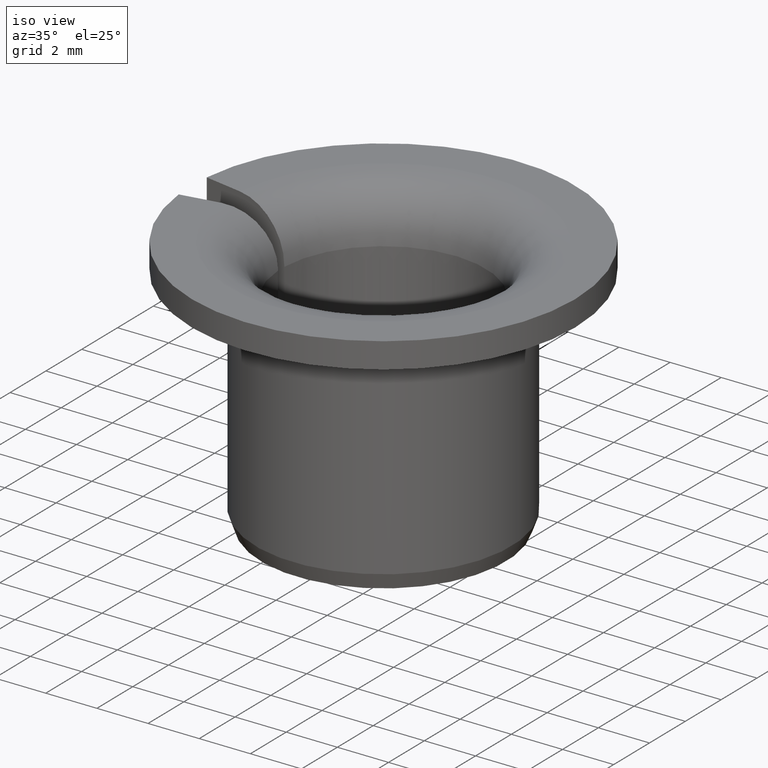
[diagram: clean part render]
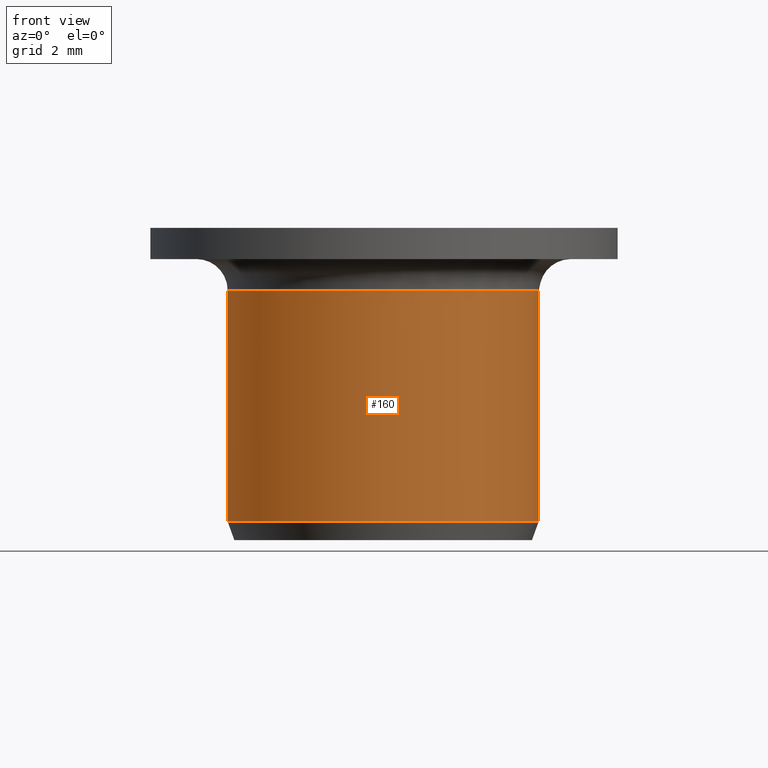
[diagram: tour spotlight — one face highlighted and labeled with its STEP entity id]
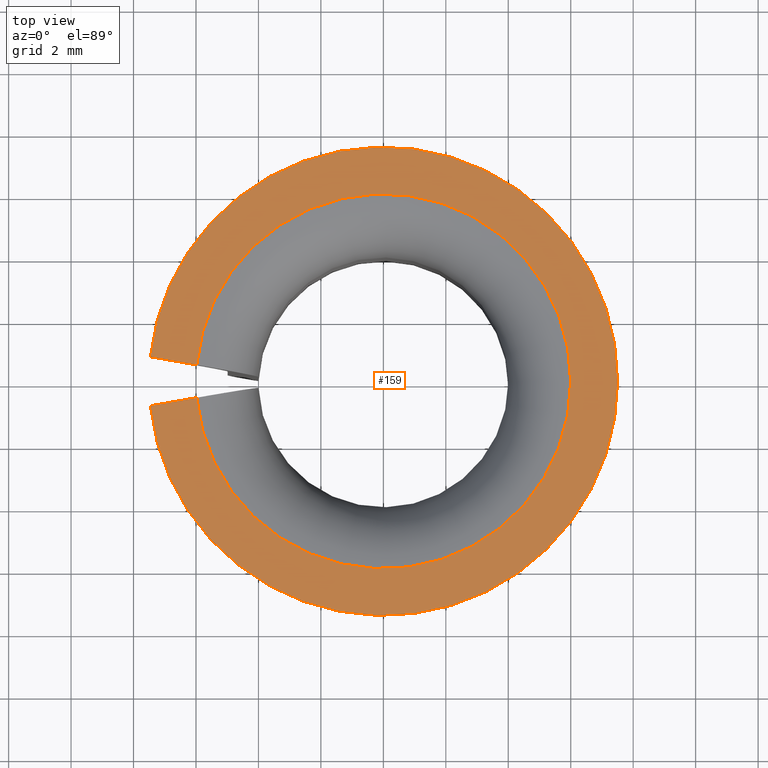
[diagram: tour spotlight — one face highlighted and labeled with its STEP entity id]
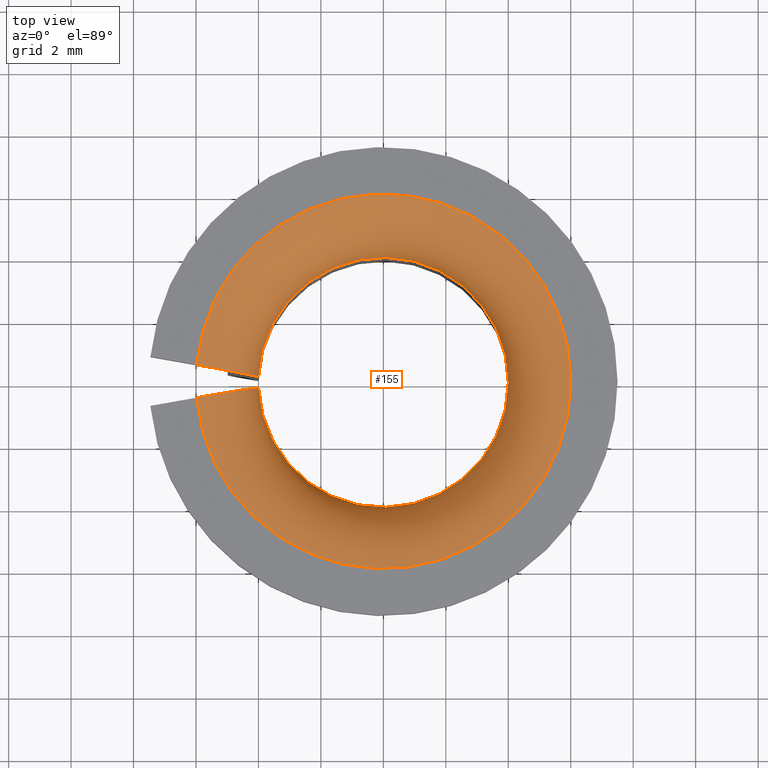
[diagram: tour spotlight — one face highlighted and labeled with its STEP entity id]
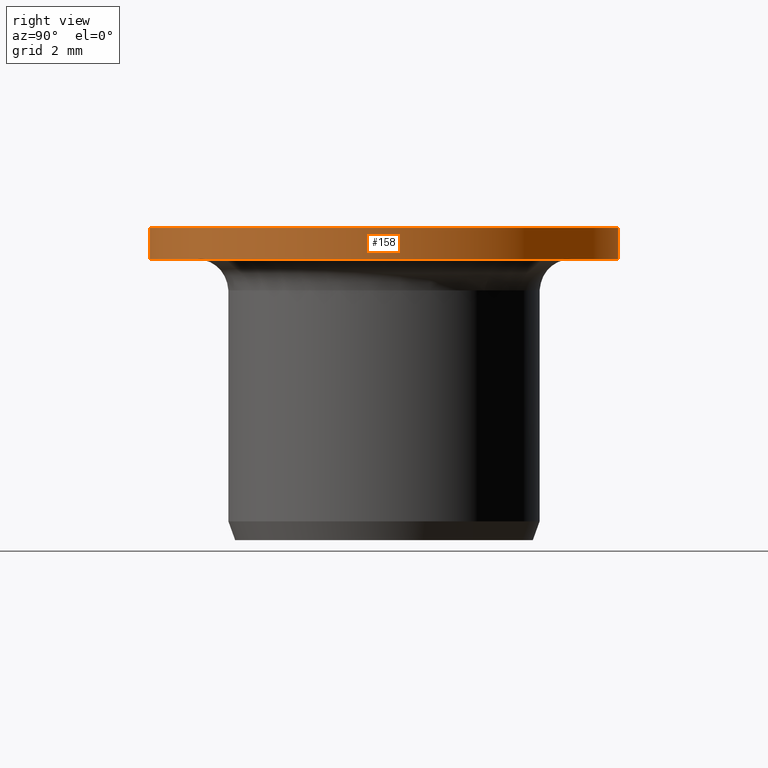
[diagram: tour spotlight — one face highlighted and labeled with its STEP entity id]
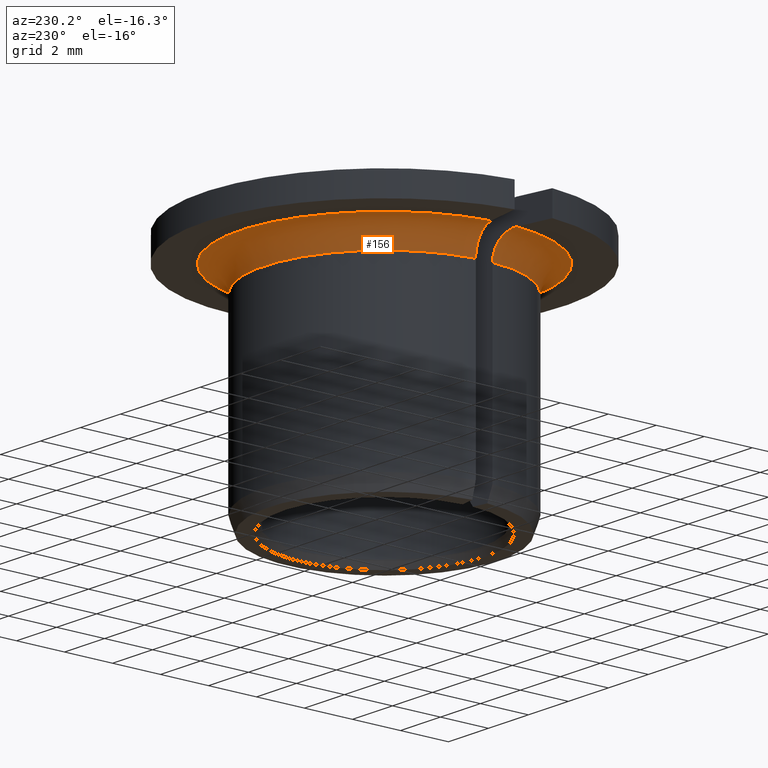
[diagram: tour spotlight — one face highlighted and labeled with its STEP entity id]
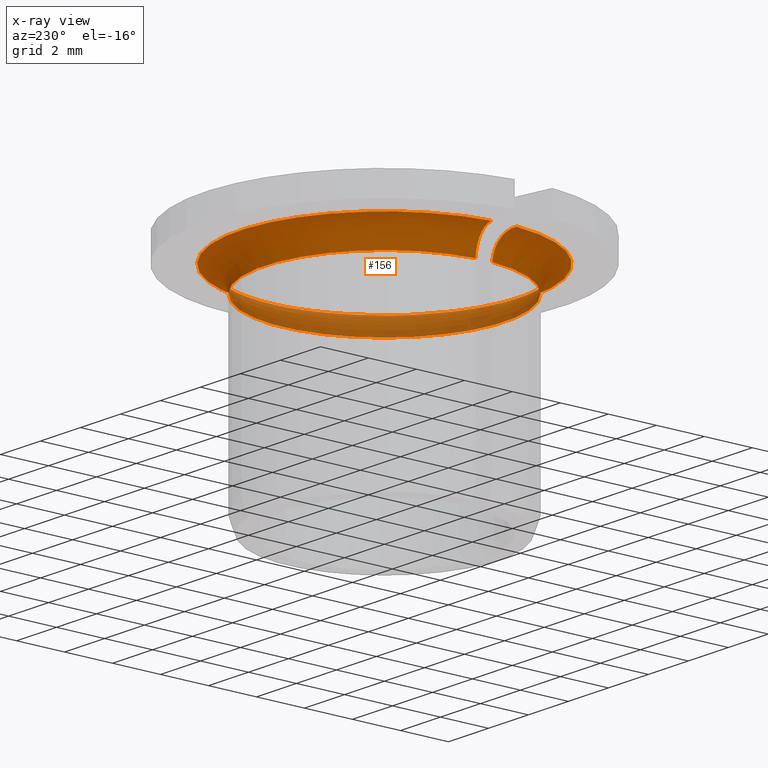
[diagram: x-ray of the same camera — body ghosted, this tour face saturated]
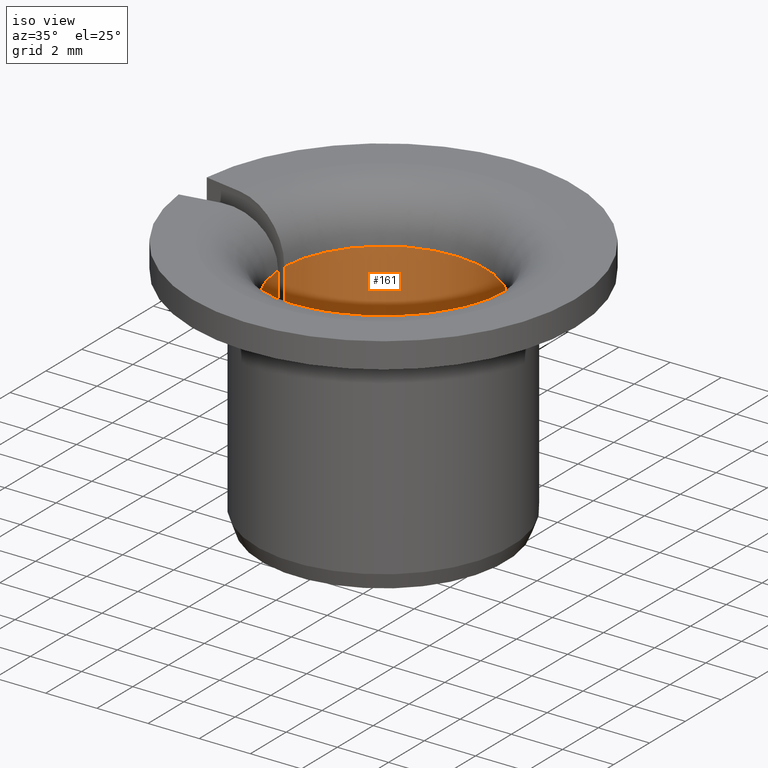
[diagram: tour spotlight — one face highlighted and labeled with its STEP entity id]
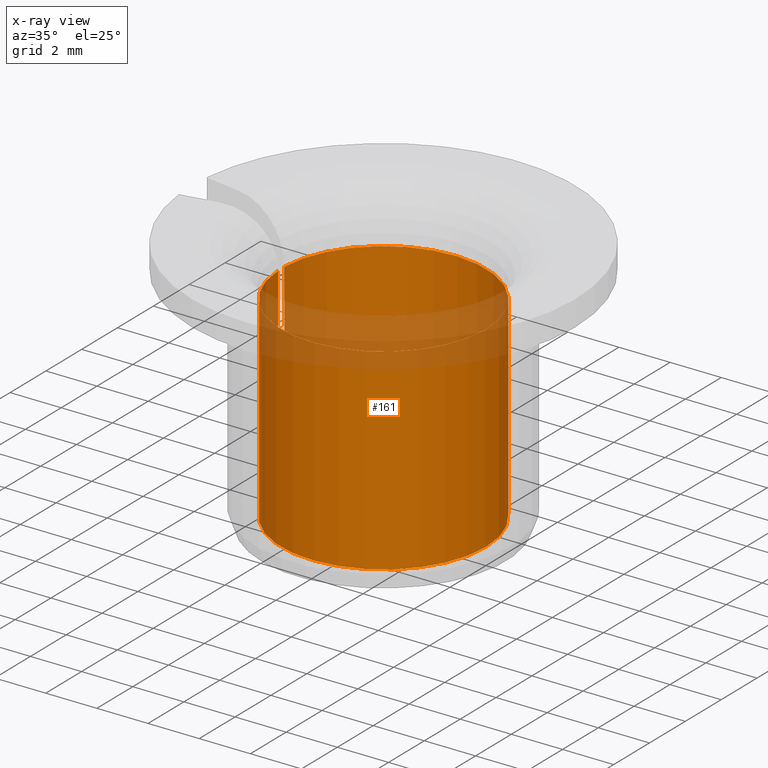
[diagram: x-ray of the same camera — body ghosted, this tour face saturated]
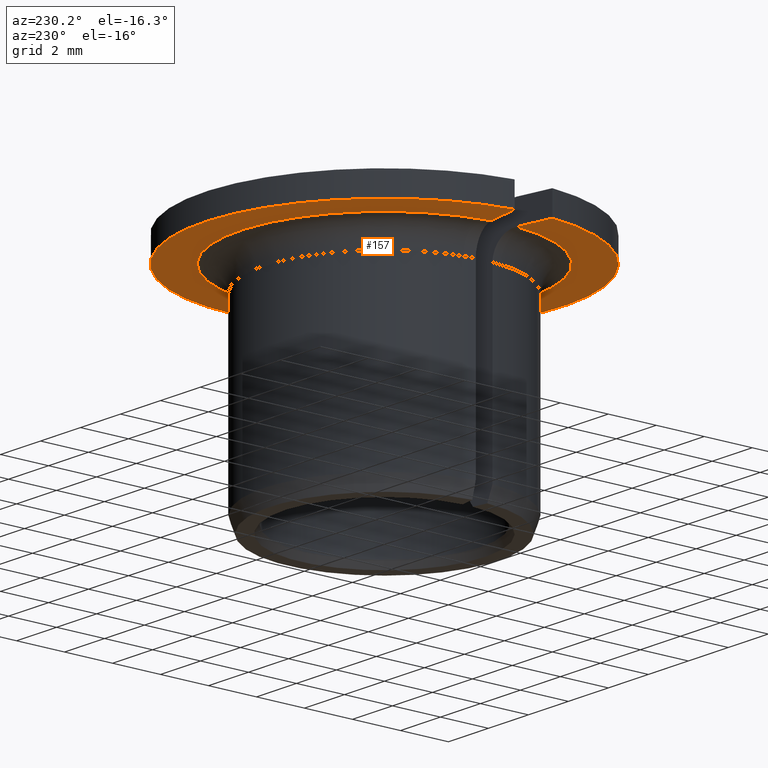
[diagram: tour spotlight — one face highlighted and labeled with its STEP entity id]
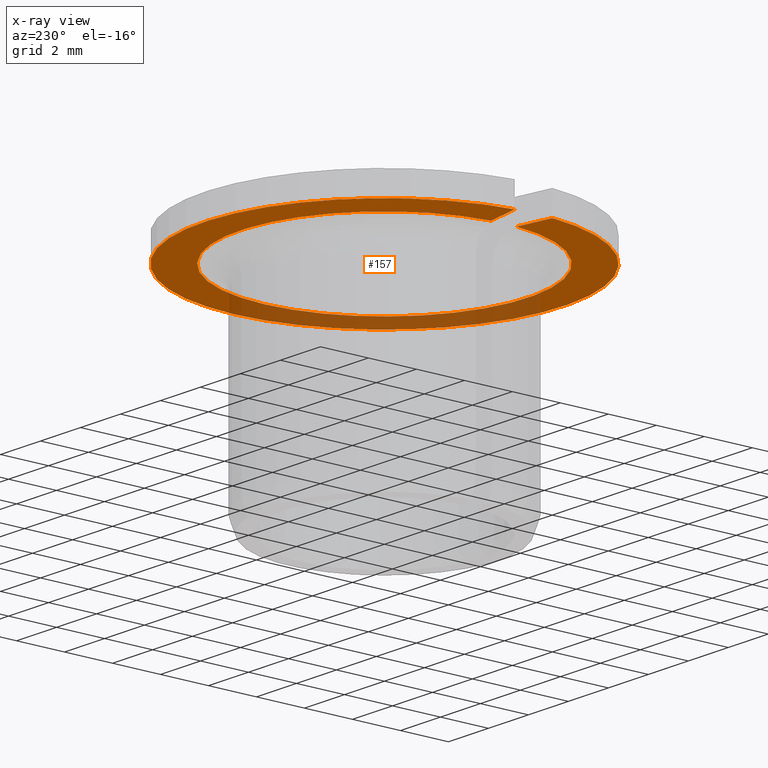
[diagram: x-ray of the same camera — body ghosted, this tour face saturated]
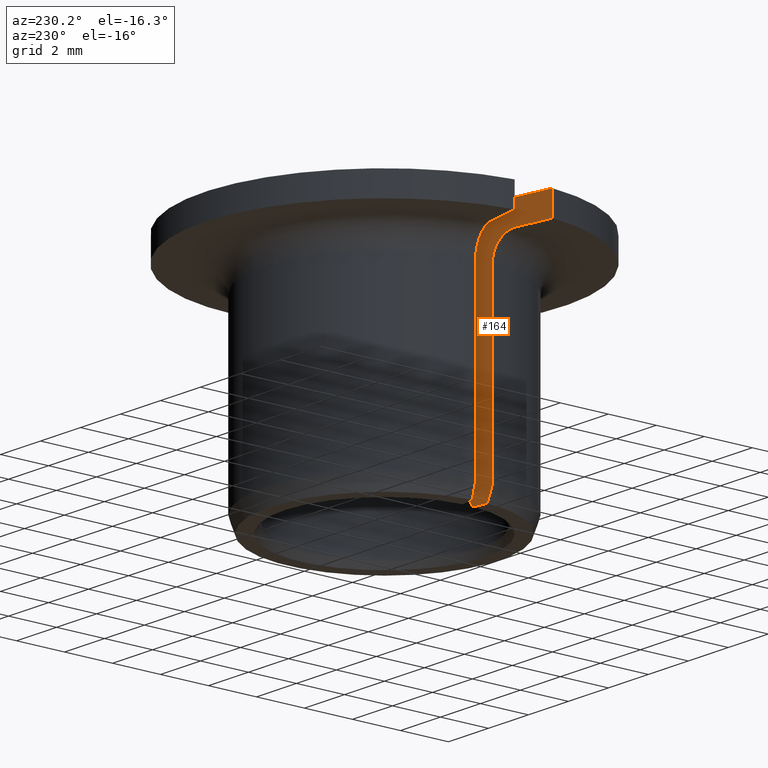
[diagram: tour spotlight — one face highlighted and labeled with its STEP entity id]
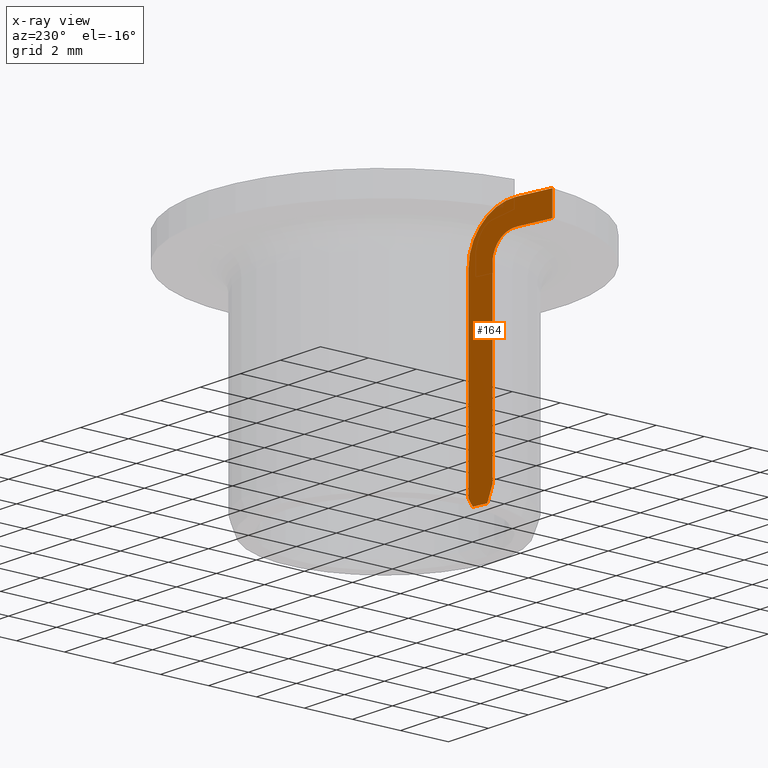
[diagram: x-ray of the same camera — body ghosted, this tour face saturated]
A machine part: a face-by-face anatomy tour. The part has 12 B-rep faces; the first image is the clean iso view, then the 8 largest visible faces are spotlighted one at a time (largest first), each with its STEP entity span.

Face 1 — front view, entity #160. In plain terms, the highlighted cylindrical surface (partial cylindrical patch) has radius 5 mm, axis along (-0, 0, -1).
Definition (entity closure, byte-faithful):
#160=ADVANCED_FACE('',(#181),#182,.T.);
#181=FACE_OUTER_BOUND('',#206,.T.);
#182=CYLINDRICAL_SURFACE('',#207,0.005);
#206=EDGE_LOOP('',(#271,#272,#273,#274));
#207=AXIS2_PLACEMENT_3D('',#275,#276,#277);
#271=ORIENTED_EDGE('',*,*,#330,.T.);
#272=ORIENTED_EDGE('',*,*,#336,.T.);
#273=ORIENTED_EDGE('',*,*,#337,.F.);
#274=ORIENTED_EDGE('',*,*,#317,.F.);
#275=CARTESIAN_POINT('',(0.0,0.0,0.0));
#276=DIRECTION('',(0.0,-6.12323399573677E-017,-1.0));
#277=DIRECTION('',(0.0,1.0,-6.12323399573677E-017));
#317=EDGE_CURVE('',#351,#353,#354,.T.);
#330=EDGE_CURVE('',#351,#374,#376,.T.);
#336=EDGE_CURVE('',#374,#384,#385,.T.);
#337=EDGE_CURVE('',#353,#384,#386,.T.);
#351=VERTEX_POINT('',#417);
#353=VERTEX_POINT('',#428);
#354=LINE('',#429,#430);
#374=VERTEX_POINT('',#474);
#376=CIRCLE('',#485,0.005);
#384=VERTEX_POINT('',#496);
#385=LINE('',#497,#498);
#386=CIRCLE('',#499,0.005);
#417=CARTESIAN_POINT('',(0.00498770087899306,-0.000350485294544406,0.008));
#428=CARTESIAN_POINT('',(0.00498770087899306,-0.000350485294544407,0.0006));
#429=CARTESIAN_POINT('',(0.00498770087899306,-0.000350485294544407,5.28750752381787E-020));
#430=VECTOR('',#513,1.0);
#474=CARTESIAN_POINT('',(0.00498770087899306,0.000350485294544408,0.008));
#485=AXIS2_PLACEMENT_3D('',#531,#532,#533);
#496=CARTESIAN_POINT('',(0.00498770087899306,0.000350485294544408,0.0006));
#497=CARTESIAN_POINT('',(0.00498770087899306,0.000350485294544408,-5.47987993856079E-020));
#498=VECTOR('',#543,1.0);
#499=AXIS2_PLACEMENT_3D('',#544,#545,#546);
#513=DIRECTION('',(0.0,-6.12323399573677E-017,-1.0));
#531=CARTESIAN_POINT('',(0.0,0.0,0.008));
#532=DIRECTION('',(0.0,-6.12323399573677E-017,-1.0));
#533=DIRECTION('',(0.0,1.0,-6.12323399573677E-017));
#543=DIRECTION('',(0.0,-6.12323399573677E-017,-1.0));
#544=CARTESIAN_POINT('',(0.0,0.0,0.0006));
#545=DIRECTION('',(0.0,-6.12323399573677E-017,-1.0));
#546=DIRECTION('',(0.0,1.0,-6.12323399573677E-017));

Face 2 — top view, entity #159. In plain terms, the highlighted planar face has unit normal (0, -0, 1).
Definition (entity closure, byte-faithful):
#159=ADVANCED_FACE('',(#179),#180,.T.);
#179=FACE_OUTER_BOUND('',#204,.T.);
#180=PLANE('',#205);
#204=EDGE_LOOP('',(#264,#265,#266,#267));
#205=AXIS2_PLACEMENT_3D('',#268,#269,#270);
#264=ORIENTED_EDGE('',*,*,#327,.T.);
#265=ORIENTED_EDGE('',*,*,#335,.F.);
#266=ORIENTED_EDGE('',*,*,#333,.F.);
#267=ORIENTED_EDGE('',*,*,#313,.T.);
#268=CARTESIAN_POINT('',(0.0075,0.0,0.01));
#269=DIRECTION('',(0.0,6.12323399573677E-017,1.0));
#270=DIRECTION('',(0.0,-1.0,6.12323399573677E-017));
#313=EDGE_CURVE('',#345,#343,#346,.T.);
#327=EDGE_CURVE('',#343,#369,#371,.T.);
#333=EDGE_CURVE('',#345,#380,#381,.T.);
#335=EDGE_CURVE('',#380,#369,#383,.T.);
#343=VERTEX_POINT('',#393);
#345=VERTEX_POINT('',#408);
#346=LINE('',#409,#410);
#369=VERTEX_POINT('',#456);
#371=CIRCLE('',#471,0.006);
#380=VERTEX_POINT('',#490);
#381=CIRCLE('',#491,0.0075);
#383=LINE('',#494,#495);
#393=CARTESIAN_POINT('',(0.00597699376410577,-0.000524924322012699,0.01));
#408=CARTESIAN_POINT('',(0.00745868032167406,-0.000786185639065035,0.01));
#409=CARTESIAN_POINT('',(0.00989365427108545,-0.00121553724366851,0.01));
#410=VECTOR('',#510,1.0);
#456=CARTESIAN_POINT('',(0.00597699376410577,0.000524924322012701,0.01));
#471=AXIS2_PLACEMENT_3D('',#525,#526,#527);
#490=CARTESIAN_POINT('',(0.00745868032167406,0.000786185639065037,0.01));
#491=AXIS2_PLACEMENT_3D('',#538,#539,#540);
#494=CARTESIAN_POINT('',(0.00989365427108545,0.00121553724366851,0.01));
#495=VECTOR('',#542,1.0);
#510=DIRECTION('',(-0.984807753012208,0.173648177666931,0.0));
#525=CARTESIAN_POINT('',(0.0,0.0,0.01));
#526=DIRECTION('',(0.0,-6.12323399573677E-017,-1.0));
#527=DIRECTION('',(0.0,1.0,-6.12323399573677E-017));
#538=CARTESIAN_POINT('',(0.0,0.0,0.01));
#539=DIRECTION('',(0.0,-6.12323399573677E-017,-1.0));
#540=DIRECTION('',(0.0,1.0,-6.12323399573677E-017));
#542=DIRECTION('',(-0.984807753012208,-0.173648177666931,2.0942693688385E-017));

Face 3 — top view, entity #155. In plain terms, the highlighted toroidal blend (fillet) surface has major radius 6 mm and minor (blend) radius 2 mm.
Definition (entity closure, byte-faithful):
#155=ADVANCED_FACE('',(#171),#172,.T.);
#171=FACE_OUTER_BOUND('',#196,.T.);
#172=TOROIDAL_SURFACE('',#197,0.006,0.002);
#196=EDGE_LOOP('',(#236,#237,#238,#239));
#197=AXIS2_PLACEMENT_3D('',#240,#241,#242);
#236=ORIENTED_EDGE('',*,*,#325,.T.);
#237=ORIENTED_EDGE('',*,*,#326,.T.);
#238=ORIENTED_EDGE('',*,*,#327,.F.);
#239=ORIENTED_EDGE('',*,*,#312,.F.);
#240=CARTESIAN_POINT('',(0.0,0.0,0.008));
#241=DIRECTION('',(0.0,-6.12323399573677E-017,-1.0));
#242=DIRECTION('',(0.0,1.0,-6.12323399573677E-017));
#312=EDGE_CURVE('',#342,#343,#344,.T.);
#325=EDGE_CURVE('',#342,#367,#368,.T.);
#326=EDGE_CURVE('',#367,#369,#370,.T.);
#327=EDGE_CURVE('',#343,#369,#371,.T.);
#342=VERTEX_POINT('',#392);
#343=VERTEX_POINT('',#393);
#344=B_SPLINE_CURVE_WITH_KNOTS('',3,(#394,#395,#396,#397,#398,#399,#400,#401,#402,#403,#404,#405,#406,#407),.UNSPECIFIED.,.F.,.F.,(4,2,2,2,2,2,4),(1.97149807994491E-007,0.000391813408886946,0.000783429667965897,0.00117504592704485,0.0015666621861238,0.0023498947042817,0.0031331272224396),.UNSPECIFIED.);
#367=VERTEX_POINT('',#454);
#368=CIRCLE('',#455,0.004);
#369=VERTEX_POINT('',#456);
#370=B_SPLINE_CURVE_WITH_KNOTS('',3,(#457,#458,#459,#460,#461,#462,#463,#464,#465,#466,#467,#468,#469,#470),.UNSPECIFIED.,.F.,.F.,(4,2,2,2,2,2,4),(1.97149807994491E-007,0.000391813408886945,0.000783429667965895,0.00117504592704485,0.0015666621861238,0.0023498947042817,0.0031331272224396),.UNSPECIFIED.);
#371=CIRCLE('',#471,0.006);
#392=CARTESIAN_POINT('',(0.00399614167081564,-0.000175646653172807,0.008));
#393=CARTESIAN_POINT('',(0.00597699376410577,-0.000524924322012699,0.01));
#394=CARTESIAN_POINT('',(0.00399614167081564,-0.000175646653172807,0.008));
#395=CARTESIAN_POINT('',(0.00399614167081564,-0.000175646653172807,0.00813242481063123));
#396=CARTESIAN_POINT('',(0.00400907724692834,-0.000177927544252484,0.008262608733413));
#397=CARTESIAN_POINT('',(0.00405972542786284,-0.000186858185075042,0.00851868434320013));
#398=CARTESIAN_POINT('',(0.0040980676884675,-0.000193618960120999,0.00864592022676375));
#399=CARTESIAN_POINT('',(0.00419795895644903,-0.000211232485803322,0.00888823095302388));
#400=CARTESIAN_POINT('',(0.004259046812882,-0.000222003923086099,0.00900311852484196));
#401=CARTESIAN_POINT('',(0.00440325719422358,-0.000247432104214877,0.00922049859161173));
#402=CARTESIAN_POINT('',(0.00448703527510573,-0.000262204440266377,0.00932324735045404));
#403=CARTESIAN_POINT('',(0.00476124120870576,-0.000310554344630415,0.00959945096658651));
#404=CARTESIAN_POINT('',(0.00498192933162646,-0.00034946761502324,0.00974807779660636));
#405=CARTESIAN_POINT('',(0.00545731236079945,-0.000433290469237357,0.00994714234040244));
#406=CARTESIAN_POINT('',(0.00571655113836875,-0.000479001260168707,0.01));
#407=CARTESIAN_POINT('',(0.00597699376410577,-0.0005249243220127,0.01));
#454=CARTESIAN_POINT('',(0.00399614167081564,0.000175646653172809,0.008));
#455=AXIS2_PLACEMENT_3D('',#522,#523,#524);
#456=CARTESIAN_POINT('',(0.00597699376410577,0.000524924322012701,0.01));
#457=CARTESIAN_POINT('',(0.00399614167081564,0.000175646653172807,0.008));
#458=CARTESIAN_POINT('',(0.00399614167081564,0.000175646653172807,0.00813242481063123));
#459=CARTESIAN_POINT('',(0.00400907724692834,0.000177927544252485,0.008262608733413));
#460=CARTESIAN_POINT('',(0.00405972542786284,0.000186858185075042,0.00851868434320012));
#461=CARTESIAN_POINT('',(0.0040980676884675,0.000193618960120999,0.00864592022676375));
#462=CARTESIAN_POINT('',(0.00419795895644903,0.000211232485803321,0.00888823095302388));
#463=CARTESIAN_POINT('',(0.004259046812882,0.000222003923086099,0.00900311852484196));
#464=CARTESIAN_POINT('',(0.00440325719422358,0.000247432104214877,0.00922049859161173));
#465=CARTESIAN_POINT('',(0.00448703527510574,0.000262204440266377,0.00932324735045404));
#466=CARTESIAN_POINT('',(0.00476124120870576,0.000310554344630415,0.00959945096658651));
#467=CARTESIAN_POINT('',(0.00498192933162646,0.000349467615023241,0.00974807779660636));
#468=CARTESIAN_POINT('',(0.00545731236079944,0.000433290469237357,0.00994714234040244));
#469=CARTESIAN_POINT('',(0.00571655113836875,0.000479001260168707,0.01));
#470=CARTESIAN_POINT('',(0.00597699376410577,0.0005249243220127,0.01));
#471=AXIS2_PLACEMENT_3D('',#525,#526,#527);
#522=CARTESIAN_POINT('',(0.0,0.0,0.008));
#523=DIRECTION('',(0.0,-6.12323399573677E-017,-1.0));
#524=DIRECTION('',(0.0,1.0,-6.12323399573677E-017));
#525=CARTESIAN_POINT('',(0.0,0.0,0.01));
#526=DIRECTION('',(0.0,-6.12323399573677E-017,-1.0));
#527=DIRECTION('',(0.0,1.0,-6.12323399573677E-017));

Face 4 — right view, entity #158. In plain terms, the highlighted cylindrical surface (partial cylindrical patch) has radius 7.5 mm, axis along (-0, 0, -1).
Definition (entity closure, byte-faithful):
#158=ADVANCED_FACE('',(#177),#178,.T.);
#177=FACE_OUTER_BOUND('',#202,.T.);
#178=CYLINDRICAL_SURFACE('',#203,0.0075);
#202=EDGE_LOOP('',(#257,#258,#259,#260));
#203=AXIS2_PLACEMENT_3D('',#261,#262,#263);
#257=ORIENTED_EDGE('',*,*,#333,.T.);
#258=ORIENTED_EDGE('',*,*,#334,.T.);
#259=ORIENTED_EDGE('',*,*,#331,.F.);
#260=ORIENTED_EDGE('',*,*,#314,.F.);
#261=CARTESIAN_POINT('',(0.0,0.0,0.0));
#262=DIRECTION('',(0.0,-6.12323399573677E-017,-1.0));
#263=DIRECTION('',(0.0,1.0,-6.12323399573677E-017));
#314=EDGE_CURVE('',#345,#347,#348,.T.);
#331=EDGE_CURVE('',#347,#377,#378,.T.);
#333=EDGE_CURVE('',#345,#380,#381,.T.);
#334=EDGE_CURVE('',#380,#377,#382,.T.);
#345=VERTEX_POINT('',#408);
#347=VERTEX_POINT('',#411);
#348=LINE('',#412,#413);
#377=VERTEX_POINT('',#486);
#378=CIRCLE('',#487,0.0075);
#380=VERTEX_POINT('',#490);
#381=CIRCLE('',#491,0.0075);
#382=LINE('',#492,#493);
#408=CARTESIAN_POINT('',(0.00745868032167406,-0.000786185639065035,0.01));
#411=CARTESIAN_POINT('',(0.00745868032167406,-0.000786185639065034,0.009));
#412=CARTESIAN_POINT('',(0.00745868032167406,-0.000786185639065034,7.9554026853408E-020));
#413=VECTOR('',#511,1.0);
#486=CARTESIAN_POINT('',(0.00745868032167406,0.000786185639065035,0.009));
#487=AXIS2_PLACEMENT_3D('',#534,#535,#536);
#490=CARTESIAN_POINT('',(0.00745868032167406,0.000786185639065037,0.01));
#491=AXIS2_PLACEMENT_3D('',#538,#539,#540);
#492=CARTESIAN_POINT('',(0.00745868032167406,0.000786185639065035,-8.14777510008371E-020));
#493=VECTOR('',#541,1.0);
#511=DIRECTION('',(0.0,-6.12323399573677E-017,-1.0));
#534=CARTESIAN_POINT('',(0.0,0.0,0.009));
#535=DIRECTION('',(0.0,-6.12323399573677E-017,-1.0));
#536=DIRECTION('',(0.0,1.0,-6.12323399573677E-017));
#538=CARTESIAN_POINT('',(0.0,0.0,0.01));
#539=DIRECTION('',(0.0,-6.12323399573677E-017,-1.0));
#540=DIRECTION('',(0.0,1.0,-6.12323399573677E-017));
#541=DIRECTION('',(0.0,-6.12323399573677E-017,-1.0));

Face 5 — auxiliary view, entity #156. An x-ray twin of the same camera follows (body ghosted, this face saturated) — the face is partly hidden behind the body. In plain terms, the highlighted toroidal blend (fillet) surface has major radius 6 mm and minor (blend) radius 1 mm.
Definition (entity closure, byte-faithful):
#156=ADVANCED_FACE('',(#173),#174,.F.);
#173=FACE_OUTER_BOUND('',#198,.T.);
#174=TOROIDAL_SURFACE('',#199,0.006,0.001);
#198=EDGE_LOOP('',(#243,#244,#245,#246));
#199=AXIS2_PLACEMENT_3D('',#247,#248,#249);
#243=ORIENTED_EDGE('',*,*,#328,.T.);
#244=ORIENTED_EDGE('',*,*,#329,.T.);
#245=ORIENTED_EDGE('',*,*,#330,.F.);
#246=ORIENTED_EDGE('',*,*,#316,.F.);
#247=CARTESIAN_POINT('',(0.0,0.0,0.008));
#248=DIRECTION('',(0.0,-6.12323399573677E-017,-1.0));
#249=DIRECTION('',(0.0,1.0,-6.12323399573677E-017));
#316=EDGE_CURVE('',#349,#351,#352,.T.);
#328=EDGE_CURVE('',#349,#372,#373,.T.);
#329=EDGE_CURVE('',#372,#374,#375,.T.);
#330=EDGE_CURVE('',#351,#374,#376,.T.);
#349=VERTEX_POINT('',#414);
#351=VERTEX_POINT('',#417);
#352=B_SPLINE_CURVE_WITH_KNOTS('',3,(#418,#419,#420,#421,#422,#423,#424,#425,#426,#427),.UNSPECIFIED.,.F.,.F.,(4,2,2,2,4),(2.32761584607259E-005,0.000414745925110807,0.000806215691760888,0.00119768545841097,0.00158915522506105),.UNSPECIFIED.);
#372=VERTEX_POINT('',#472);
#373=CIRCLE('',#473,0.006);
#374=VERTEX_POINT('',#474);
#375=B_SPLINE_CURVE_WITH_KNOTS('',3,(#475,#476,#477,#478,#479,#480,#481,#482,#483,#484),.UNSPECIFIED.,.F.,.F.,(4,2,2,2,4),(2.32761584607259E-005,0.000414745925110807,0.000806215691760888,0.00119768545841097,0.00158915522506105),.UNSPECIFIED.);
#376=CIRCLE('',#485,0.005);
#414=CARTESIAN_POINT('',(0.00597699376410579,-0.000524924322012701,0.009));
#417=CARTESIAN_POINT('',(0.00498770087899306,-0.000350485294544406,0.008));
#418=CARTESIAN_POINT('',(0.00597699376410579,-0.000524924322012703,0.009));
#419=CARTESIAN_POINT('',(0.00584711842756404,-0.000502023796051801,0.009));
#420=CARTESIAN_POINT('',(0.00571862013906268,-0.000479366080814151,0.00897403826328285));
#421=CARTESIAN_POINT('',(0.00547993772722357,-0.000437279931786347,0.00887429083842926));
#422=CARTESIAN_POINT('',(0.00536996502046796,-0.000417888776443792,0.00880013058665907));
#423=CARTESIAN_POINT('',(0.00518738883395465,-0.000385695668726633,0.00861618594293438));
#424=CARTESIAN_POINT('',(0.00511333951486583,-0.000372638775868185,0.00850467208311291));
#425=CARTESIAN_POINT('',(0.00501411993121606,-0.000355143686256071,0.00826390958854768));
#426=CARTESIAN_POINT('',(0.00498770087898896,-0.000350485294543686,0.00813238072525078));
#427=CARTESIAN_POINT('',(0.00498770087898889,-0.000350485294543674,0.00800000000000051));
#472=CARTESIAN_POINT('',(0.00597699376410579,0.000524924322012702,0.009));
#473=AXIS2_PLACEMENT_3D('',#528,#529,#530);
#474=CARTESIAN_POINT('',(0.00498770087899306,0.000350485294544408,0.008));
#475=CARTESIAN_POINT('',(0.00597699376410579,0.000524924322012703,0.009));
#476=CARTESIAN_POINT('',(0.00584711842756404,0.000502023796051801,0.009));
#477=CARTESIAN_POINT('',(0.00571862013906268,0.000479366080814151,0.00897403826328285));
#478=CARTESIAN_POINT('',(0.00547993772722357,0.000437279931786347,0.00887429083842926));
#479=CARTESIAN_POINT('',(0.00536996502046796,0.000417888776443792,0.00880013058665907));
#480=CARTESIAN_POINT('',(0.00518738883395465,0.000385695668726633,0.00861618594293438));
#481=CARTESIAN_POINT('',(0.00511333951486583,0.000372638775868184,0.00850467208311292));
#482=CARTESIAN_POINT('',(0.00501411993121606,0.00035514368625607,0.00826390958854768));
#483=CARTESIAN_POINT('',(0.00498770087898896,0.000350485294543686,0.00813238072525078));
#484=CARTESIAN_POINT('',(0.00498770087898889,0.000350485294543674,0.00800000000000051));
#485=AXIS2_PLACEMENT_3D('',#531,#532,#533);
#528=CARTESIAN_POINT('',(0.0,0.0,0.009));
#529=DIRECTION('',(0.0,-6.12323399573677E-017,-1.0));
#530=DIRECTION('',(0.0,1.0,-6.12323399573677E-017));
#531=CARTESIAN_POINT('',(0.0,0.0,0.008));
#532=DIRECTION('',(0.0,-6.12323399573677E-017,-1.0));
#533=DIRECTION('',(0.0,1.0,-6.12323399573677E-017));

Face 6 — iso view, entity #161. An x-ray twin of the same camera follows (body ghosted, this face saturated) — the face is partly hidden behind the body. In plain terms, the highlighted cylindrical surface (partial cylindrical patch) has radius 4 mm, axis along (-0, 0, -1).
Definition (entity closure, byte-faithful):
#161=ADVANCED_FACE('',(#183),#184,.F.);
#183=FACE_OUTER_BOUND('',#208,.T.);
#184=CYLINDRICAL_SURFACE('',#209,0.004);
#208=EDGE_LOOP('',(#278,#279,#280,#281));
#209=AXIS2_PLACEMENT_3D('',#282,#283,#284);
#278=ORIENTED_EDGE('',*,*,#324,.T.);
#279=ORIENTED_EDGE('',*,*,#338,.T.);
#280=ORIENTED_EDGE('',*,*,#325,.F.);
#281=ORIENTED_EDGE('',*,*,#321,.F.);
#282=CARTESIAN_POINT('',(0.0,0.0,0.0));
#283=DIRECTION('',(0.0,-6.12323399573677E-017,-1.0));
#284=DIRECTION('',(0.0,1.0,-6.12323399573677E-017));
#321=EDGE_CURVE('',#359,#342,#361,.F.);
#324=EDGE_CURVE('',#359,#364,#366,.T.);
#325=EDGE_CURVE('',#342,#367,#368,.T.);
#338=EDGE_CURVE('',#364,#367,#387,.F.);
#342=VERTEX_POINT('',#392);
#359=VERTEX_POINT('',#439);
#361=LINE('',#444,#445);
#364=VERTEX_POINT('',#448);
#366=CIRCLE('',#453,0.004);
#367=VERTEX_POINT('',#454);
#368=CIRCLE('',#455,0.004);
#387=LINE('',#500,#501);
#392=CARTESIAN_POINT('',(0.00399614167081564,-0.000175646653172807,0.008));
#439=CARTESIAN_POINT('',(0.00399614167081564,-0.000175646653172807,0.0003));
#444=CARTESIAN_POINT('',(0.00399614167081564,-0.000175646653172807,4.21692961120287E-020));
#445=VECTOR('',#515,1.0);
#448=CARTESIAN_POINT('',(0.00399614167081564,0.000175646653172808,0.0003));
#453=AXIS2_PLACEMENT_3D('',#519,#520,#521);
#454=CARTESIAN_POINT('',(0.00399614167081564,0.000175646653172809,0.008));
#455=AXIS2_PLACEMENT_3D('',#522,#523,#524);
#500=CARTESIAN_POINT('',(0.00399614167081564,0.000175646653172808,-4.40930202594578E-020));
#501=VECTOR('',#547,1.0);
#515=DIRECTION('',(0.0,-6.12323399573677E-017,-1.0));
#519=CARTESIAN_POINT('',(0.0,0.0,0.0003));
#520=DIRECTION('',(0.0,-6.12323399573677E-017,-1.0));
#521=DIRECTION('',(0.0,1.0,-6.12323399573677E-017));
#522=CARTESIAN_POINT('',(0.0,0.0,0.008));
#523=DIRECTION('',(0.0,-6.12323399573677E-017,-1.0));
#524=DIRECTION('',(0.0,1.0,-6.12323399573677E-017));
#547=DIRECTION('',(0.0,-6.12323399573677E-017,-1.0));

Face 7 — auxiliary view, entity #157. An x-ray twin of the same camera follows (body ghosted, this face saturated) — the face is partly hidden behind the body. In plain terms, the highlighted planar face has unit normal (-0, 0, -1).
Definition (entity closure, byte-faithful):
#157=ADVANCED_FACE('',(#175),#176,.T.);
#175=FACE_OUTER_BOUND('',#200,.T.);
#176=PLANE('',#201);
#200=EDGE_LOOP('',(#250,#251,#252,#253));
#201=AXIS2_PLACEMENT_3D('',#254,#255,#256);
#250=ORIENTED_EDGE('',*,*,#331,.T.);
#251=ORIENTED_EDGE('',*,*,#332,.T.);
#252=ORIENTED_EDGE('',*,*,#328,.F.);
#253=ORIENTED_EDGE('',*,*,#315,.F.);
#254=CARTESIAN_POINT('',(0.006,0.0,0.009));
#255=DIRECTION('',(0.0,-6.12323399573677E-017,-1.0));
#256=DIRECTION('',(0.0,1.0,-6.12323399573677E-017));
#315=EDGE_CURVE('',#347,#349,#350,.T.);
#328=EDGE_CURVE('',#349,#372,#373,.T.);
#331=EDGE_CURVE('',#347,#377,#378,.T.);
#332=EDGE_CURVE('',#377,#372,#379,.T.);
#347=VERTEX_POINT('',#411);
#349=VERTEX_POINT('',#414);
#350=LINE('',#415,#416);
#372=VERTEX_POINT('',#472);
#373=CIRCLE('',#473,0.006);
#377=VERTEX_POINT('',#486);
#378=CIRCLE('',#487,0.0075);
#379=LINE('',#488,#489);
#411=CARTESIAN_POINT('',(0.00745868032167406,-0.000786185639065034,0.009));
#414=CARTESIAN_POINT('',(0.00597699376410579,-0.000524924322012701,0.009));
#415=CARTESIAN_POINT('',(0.00590953893117886,-0.000513030214988502,0.009));
#416=VECTOR('',#512,1.0);
#472=CARTESIAN_POINT('',(0.00597699376410579,0.000524924322012702,0.009));
#473=AXIS2_PLACEMENT_3D('',#528,#529,#530);
#486=CARTESIAN_POINT('',(0.00745868032167406,0.000786185639065035,0.009));
#487=AXIS2_PLACEMENT_3D('',#534,#535,#536);
#488=CARTESIAN_POINT('',(0.00590953893117886,0.000513030214988503,0.009));
#489=VECTOR('',#537,1.0);
#512=DIRECTION('',(-0.984807753012208,0.173648177666931,-1.06328842478789E-017));
#528=CARTESIAN_POINT('',(0.0,0.0,0.009));
#529=DIRECTION('',(0.0,-6.12323399573677E-017,-1.0));
#530=DIRECTION('',(0.0,1.0,-6.12323399573677E-017));
#534=CARTESIAN_POINT('',(0.0,0.0,0.009));
#535=DIRECTION('',(0.0,-6.12323399573677E-017,-1.0));
#536=DIRECTION('',(0.0,1.0,-6.12323399573677E-017));
#537=DIRECTION('',(-0.984807753012208,-0.173648177666931,1.06328842478789E-017));

Face 8 — auxiliary view, entity #164. An x-ray twin of the same camera follows (body ghosted, this face saturated) — the face is partly hidden behind the body. In plain terms, the highlighted planar face has unit normal (-0.1736, 0.9848, -0).
Definition (entity closure, byte-faithful):
#164=ADVANCED_FACE('',(#189),#190,.T.);
#189=FACE_OUTER_BOUND('',#214,.T.);
#190=PLANE('',#215);
#214=EDGE_LOOP('',(#299,#300,#301,#302,#303,#304,#305,#306,#307,#308));
#215=AXIS2_PLACEMENT_3D('',#309,#310,#311);
#299=ORIENTED_EDGE('',*,*,#338,.F.);
#300=ORIENTED_EDGE('',*,*,#323,.F.);
#301=ORIENTED_EDGE('',*,*,#340,.T.);
#302=ORIENTED_EDGE('',*,*,#341,.F.);
#303=ORIENTED_EDGE('',*,*,#336,.F.);
#304=ORIENTED_EDGE('',*,*,#329,.F.);
#305=ORIENTED_EDGE('',*,*,#332,.F.);
#306=ORIENTED_EDGE('',*,*,#334,.F.);
#307=ORIENTED_EDGE('',*,*,#335,.T.);
#308=ORIENTED_EDGE('',*,*,#326,.F.);
#309=CARTESIAN_POINT('',(-0.00770955855681633,-0.00188838412504393,2.27746992961017E-019));
#310=DIRECTION('',(0.173648177666931,-0.984807753012208,-3.69276194597514E-018));
#311=DIRECTION('',(-2.12657684957577E-017,-6.03423532709537E-033,-1.0));
#323=EDGE_CURVE('',#362,#364,#365,.T.);
#326=EDGE_CURVE('',#367,#369,#370,.T.);
#329=EDGE_CURVE('',#372,#374,#375,.T.);
#332=EDGE_CURVE('',#377,#372,#379,.T.);
#334=EDGE_CURVE('',#380,#377,#382,.T.);
#335=EDGE_CURVE('',#380,#369,#383,.T.);
#336=EDGE_CURVE('',#374,#384,#385,.T.);
#338=EDGE_CURVE('',#364,#367,#387,.F.);
#340=EDGE_CURVE('',#362,#388,#390,.T.);
#341=EDGE_CURVE('',#384,#388,#391,.T.);
#362=VERTEX_POINT('',#446);
#364=VERTEX_POINT('',#448);
#365=B_SPLINE_CURVE_WITH_KNOTS('',3,(#449,#450,#451,#452),.UNSPECIFIED.,.F.,.F.,(4,4),(2.31396596338668E-007,0.000347356429367464),.UNSPECIFIED.);
#367=VERTEX_POINT('',#454);
#369=VERTEX_POINT('',#456);
#370=B_SPLINE_CURVE_WITH_KNOTS('',3,(#457,#458,#459,#460,#461,#462,#463,#464,#465,#466,#467,#468,#469,#470),.UNSPECIFIED.,.F.,.F.,(4,2,2,2,2,2,4),(1.97149807994491E-007,0.000391813408886945,0.000783429667965895,0.00117504592704485,0.0015666621861238,0.0023498947042817,0.0031331272224396),.UNSPECIFIED.);
#372=VERTEX_POINT('',#472);
#374=VERTEX_POINT('',#474);
#375=B_SPLINE_CURVE_WITH_KNOTS('',3,(#475,#476,#477,#478,#479,#480,#481,#482,#483,#484),.UNSPECIFIED.,.F.,.F.,(4,2,2,2,4),(2.32761584607259E-005,0.000414745925110807,0.000806215691760888,0.00119768545841097,0.00158915522506105),.UNSPECIFIED.);
#377=VERTEX_POINT('',#486);
#379=LINE('',#488,#489);
#380=VERTEX_POINT('',#490);
#382=LINE('',#492,#493);
#383=LINE('',#494,#495);
#384=VERTEX_POINT('',#496);
#385=LINE('',#497,#498);
#387=LINE('',#500,#501);
#388=VERTEX_POINT('',#502);
#390=LINE('',#504,#505);
#391=B_SPLINE_CURVE_WITH_KNOTS('',3,(#506,#507,#508,#509),.UNSPECIFIED.,.F.,.F.,(4,4),(2.12972123696982E-007,0.000639148274514943),.UNSPECIFIED.);
#446=CARTESIAN_POINT('',(0.00416811907584122,0.000205970909751045,6.18242089406486E-019));
#448=CARTESIAN_POINT('',(0.00399614167081564,0.000175646653172808,0.0003));
#449=CARTESIAN_POINT('',(0.00416811907584122,0.000205970909751045,-1.59016448316443E-018));
#450=CARTESIAN_POINT('',(0.00411080795546129,0.000195865412933433,0.000100008676351467));
#451=CARTESIAN_POINT('',(0.00405348279616506,0.000185757440676097,0.000200009059158184));
#452=CARTESIAN_POINT('',(0.00399614167081564,0.000175646653172808,0.000299999999999999));
#454=CARTESIAN_POINT('',(0.00399614167081564,0.000175646653172809,0.008));
#456=CARTESIAN_POINT('',(0.00597699376410577,0.000524924322012701,0.01));
#457=CARTESIAN_POINT('',(0.00399614167081564,0.000175646653172807,0.008));
#458=CARTESIAN_POINT('',(0.00399614167081564,0.000175646653172807,0.00813242481063123));
#459=CARTESIAN_POINT('',(0.00400907724692834,0.000177927544252485,0.008262608733413));
#460=CARTESIAN_POINT('',(0.00405972542786284,0.000186858185075042,0.00851868434320012));
#461=CARTESIAN_POINT('',(0.0040980676884675,0.000193618960120999,0.00864592022676375));
#462=CARTESIAN_POINT('',(0.00419795895644903,0.000211232485803321,0.00888823095302388));
#463=CARTESIAN_POINT('',(0.004259046812882,0.000222003923086099,0.00900311852484196));
#464=CARTESIAN_POINT('',(0.00440325719422358,0.000247432104214877,0.00922049859161173));
#465=CARTESIAN_POINT('',(0.00448703527510574,0.000262204440266377,0.00932324735045404));
#466=CARTESIAN_POINT('',(0.00476124120870576,0.000310554344630415,0.00959945096658651));
#467=CARTESIAN_POINT('',(0.00498192933162646,0.000349467615023241,0.00974807779660636));
#468=CARTESIAN_POINT('',(0.00545731236079944,0.000433290469237357,0.00994714234040244));
#469=CARTESIAN_POINT('',(0.00571655113836875,0.000479001260168707,0.01));
#470=CARTESIAN_POINT('',(0.00597699376410577,0.0005249243220127,0.01));
#472=CARTESIAN_POINT('',(0.00597699376410579,0.000524924322012702,0.009));
#474=CARTESIAN_POINT('',(0.00498770087899306,0.000350485294544408,0.008));
#475=CARTESIAN_POINT('',(0.00597699376410579,0.000524924322012703,0.009));
#476=CARTESIAN_POINT('',(0.00584711842756404,0.000502023796051801,0.009));
#477=CARTESIAN_POINT('',(0.00571862013906268,0.000479366080814151,0.00897403826328285));
#478=CARTESIAN_POINT('',(0.00547993772722357,0.000437279931786347,0.00887429083842926));
#479=CARTESIAN_POINT('',(0.00536996502046796,0.000417888776443792,0.00880013058665907));
#480=CARTESIAN_POINT('',(0.00518738883395465,0.000385695668726633,0.00861618594293438));
#481=CARTESIAN_POINT('',(0.00511333951486583,0.000372638775868184,0.00850467208311292));
#482=CARTESIAN_POINT('',(0.00501411993121606,0.00035514368625607,0.00826390958854768));
#483=CARTESIAN_POINT('',(0.00498770087898896,0.000350485294543686,0.00813238072525078));
#484=CARTESIAN_POINT('',(0.00498770087898889,0.000350485294543674,0.00800000000000051));
#486=CARTESIAN_POINT('',(0.00745868032167406,0.000786185639065035,0.009));
#488=CARTESIAN_POINT('',(0.00590953893117886,0.000513030214988503,0.009));
#489=VECTOR('',#537,1.0);
#490=CARTESIAN_POINT('',(0.00745868032167406,0.000786185639065037,0.01));
#492=CARTESIAN_POINT('',(0.00745868032167406,0.000786185639065035,-8.14777510008371E-020));
#493=VECTOR('',#541,1.0);
#494=CARTESIAN_POINT('',(0.00989365427108545,0.00121553724366851,0.01));
#495=VECTOR('',#542,1.0);
#496=CARTESIAN_POINT('',(0.00498770087899306,0.000350485294544408,0.0006));
#497=CARTESIAN_POINT('',(0.00498770087899306,0.000350485294544408,-5.47987993856079E-020));
#498=VECTOR('',#543,1.0);
#500=CARTESIAN_POINT('',(0.00399614167081564,0.000175646653172808,-4.40930202594578E-020));
#501=VECTOR('',#547,1.0);
#502=CARTESIAN_POINT('',(0.00477140534669062,0.000312346556392789,-1.91257105255564E-020));
#504=CARTESIAN_POINT('',(0.003,0.0,6.43083039248804E-019));
#505=VECTOR('',#551,1.0);
#506=CARTESIAN_POINT('',(0.00498770087899306,0.000350485294544409,0.000600000000000001));
#507=CARTESIAN_POINT('',(0.00491561830649228,0.000337775192173647,0.000399994076477626));
#508=CARTESIAN_POINT('',(0.00484352053067909,0.000325062409048712,0.000199993801739417));
#509=CARTESIAN_POINT('',(0.00477140534669062,0.000312346556392789,7.72857145306137E-019));
#537=DIRECTION('',(-0.984807753012208,-0.173648177666931,1.06328842478789E-017));
#541=DIRECTION('',(0.0,-6.12323399573677E-017,-1.0));
#542=DIRECTION('',(-0.984807753012208,-0.173648177666931,2.0942693688385E-017));
#543=DIRECTION('',(0.0,-6.12323399573677E-017,-1.0));
#547=DIRECTION('',(0.0,-6.12323399573677E-017,-1.0));
#551=DIRECTION('',(0.984807753012208,0.173648177666931,-2.0942693688385E-017));